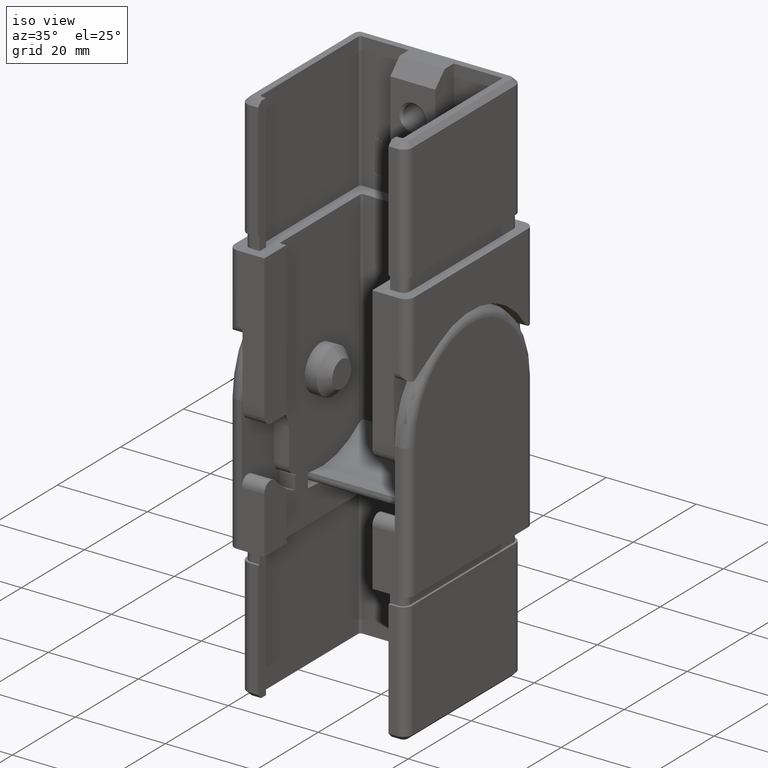
[diagram: clean part render]
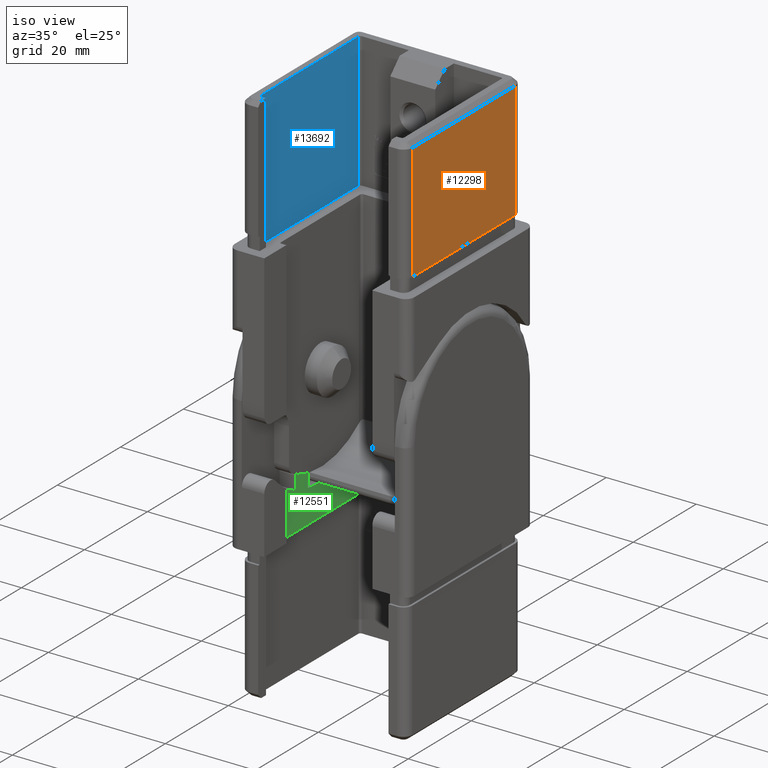
[diagram: same view with three faces highlighted in distinct colors, each labeled with its STEP entity id]
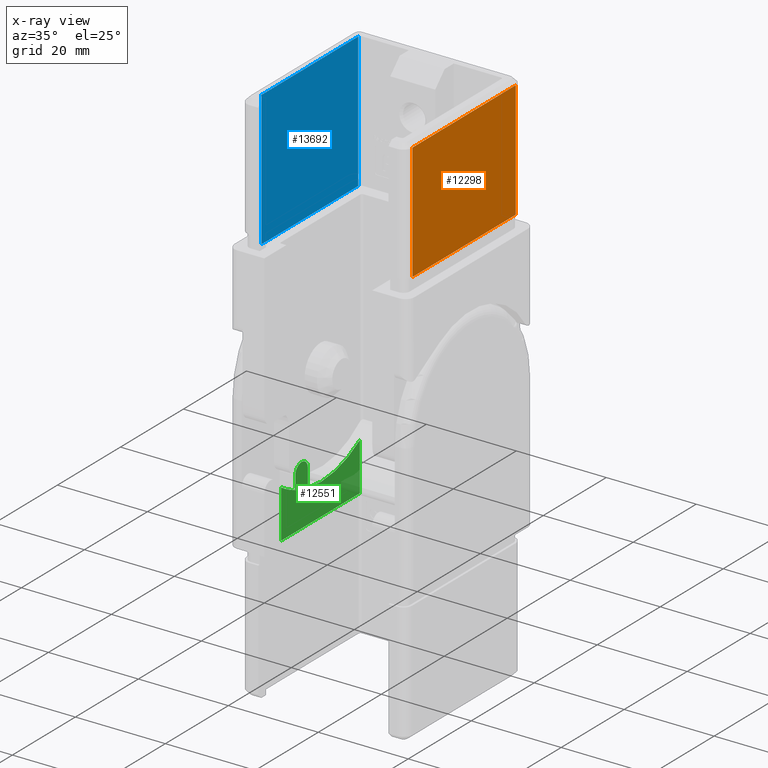
[diagram: x-ray of the same camera — body ghosted, the three highlighted faces saturated]
A machine part, iso view with three faces highlighted in distinct colors.
The next image is the same camera in x-ray (body ghosted, the three faces saturated) — at least one of them is partly hidden behind the body in this view.
Their STEP definitions:

[orange] entity #12298 — the highlighted planar face has unit normal (1, 0, 0).
#258 = VERTEX_POINT ( 'NONE', #21685 ) ;
#331 = DIRECTION ( 'NONE',  ( -0.0000000000000000000, -0.0000000000000000000, -1.000000000000000000 ) ) ;
#446 = VECTOR ( 'NONE', #14675, 1000.000000000000000 ) ;
#2272 = ORIENTED_EDGE ( 'NONE', *, *, #13536, .F. ) ;
#2844 = CARTESIAN_POINT ( 'NONE',  ( 18.39999999999998800, 16.39999999999997700, 3.000000000000002700 ) ) ;
#3814 = CARTESIAN_POINT ( 'NONE',  ( 18.39999999999998800, -16.40000000000002000, 3.000000000000002700 ) ) ;
#4831 = VECTOR ( 'NONE', #331, 1000.000000000000000 ) ;
#5571 = VERTEX_POINT ( 'NONE', #23393 ) ;
#6467 = VERTEX_POINT ( 'NONE', #23175 ) ;
#6833 = LINE ( 'NONE', #2844, #16278 ) ;
#6858 = ORIENTED_EDGE ( 'NONE', *, *, #16550, .T. ) ;
#7132 = VERTEX_POINT ( 'NONE', #3814 ) ;
#8384 = EDGE_CURVE ( 'NONE', #5571, #6467, #21332, .T. ) ;
#8396 = PLANE ( 'NONE',  #10273 ) ;
#9656 = LINE ( 'NONE', #20561, #446 ) ;
#10273 = AXIS2_PLACEMENT_3D ( 'NONE', #20420, #14293, #12405 ) ;
#11227 = CARTESIAN_POINT ( 'NONE',  ( 18.40000000000000600, 0.0000000000000000000, 29.00000000000000400 ) ) ;
#11598 = EDGE_CURVE ( 'NONE', #258, #7132, #9656, .T. ) ;
#12298 = ADVANCED_FACE ( 'NONE', ( #24291 ), #8396, .T. ) ;
#12405 = DIRECTION ( 'NONE',  ( -0.0000000000000000000, 0.0000000000000000000, -1.000000000000000000 ) ) ;
#12565 = ORIENTED_EDGE ( 'NONE', *, *, #11598, .T. ) ;
#12939 = DIRECTION ( 'NONE',  ( 0.0000000000000000000, -1.000000000000000000, 0.0000000000000000000 ) ) ;
#13536 = EDGE_CURVE ( 'NONE', #6467, #7132, #6833, .T. ) ;
#14293 = DIRECTION ( 'NONE',  ( 1.000000000000000000, 0.0000000000000000000, -0.0000000000000000000 ) ) ;
#14675 = DIRECTION ( 'NONE',  ( -0.0000000000000000000, -0.0000000000000000000, -1.000000000000000000 ) ) ;
#16278 = VECTOR ( 'NONE', #12939, 1000.000000000000000 ) ;
#16550 = EDGE_CURVE ( 'NONE', #5571, #258, #22493, .T. ) ;
#18893 = ORIENTED_EDGE ( 'NONE', *, *, #8384, .F. ) ;
#20026 = CARTESIAN_POINT ( 'NONE',  ( 18.40000000000000600, 16.39999999999999900, 30.00000000000000000 ) ) ;
#20420 = CARTESIAN_POINT ( 'NONE',  ( 18.40000000000000600, 0.0000000000000000000, 30.00000000000000000 ) ) ;
#20561 = CARTESIAN_POINT ( 'NONE',  ( 18.40000000000000600, -16.39999999999999900, 30.00000000000000000 ) ) ;
#21332 = LINE ( 'NONE', #20026, #4831 ) ;
#21508 = EDGE_LOOP ( 'NONE', ( #2272, #18893, #6858, #12565 ) ) ;
#21685 = CARTESIAN_POINT ( 'NONE',  ( 18.40000000000000600, -16.39999999999999900, 29.00000000000000400 ) ) ;
#22493 = LINE ( 'NONE', #11227, #22808 ) ;
#22808 = VECTOR ( 'NONE', #24879, 1000.000000000000000 ) ;
#23175 = CARTESIAN_POINT ( 'NONE',  ( 18.39999999999998800, 16.39999999999997700, 3.000000000000002700 ) ) ;
#23393 = CARTESIAN_POINT ( 'NONE',  ( 18.40000000000000600, 16.39999999999999900, 29.00000000000000400 ) ) ;
#24291 = FACE_OUTER_BOUND ( 'NONE', #21508, .T. ) ;
#24879 = DIRECTION ( 'NONE',  ( 0.0000000000000000000, -1.000000000000000000, 0.0000000000000000000 ) ) ;

[blue] entity #13692 — the highlighted planar face has unit normal (-1, 0, 0).
#71 = ORIENTED_EDGE ( 'NONE', *, *, #15171, .T. ) ;
#564 = CARTESIAN_POINT ( 'NONE',  ( -15.90000000000000700, 15.39999999999999300, 30.00000000000000000 ) ) ;
#1573 = DIRECTION ( 'NONE',  ( 0.0000000000000000000, 1.000000000000000000, -0.0000000000000000000 ) ) ;
#3134 = CARTESIAN_POINT ( 'NONE',  ( -15.90000000000000700, -15.39999999999999300, 0.0000000000000000000 ) ) ;
#4199 = LINE ( 'NONE', #564, #5729 ) ;
#4682 = VERTEX_POINT ( 'NONE', #15264 ) ;
#4994 = FACE_OUTER_BOUND ( 'NONE', #20919, .T. ) ;
#5395 = DIRECTION ( 'NONE',  ( -1.000000000000000000, 0.0000000000000000000, 0.0000000000000000000 ) ) ;
#5610 = CARTESIAN_POINT ( 'NONE',  ( -15.90000000000000700, 0.0000000000000000000, 0.0000000000000000000 ) ) ;
#5729 = VECTOR ( 'NONE', #21786, 1000.000000000000000 ) ;
#6264 = EDGE_CURVE ( 'NONE', #4682, #21860, #17522, .T. ) ;
#6694 = CARTESIAN_POINT ( 'NONE',  ( -15.90000000000000700, -15.39999999999999300, 30.00000000000000000 ) ) ;
#6783 = DIRECTION ( 'NONE',  ( -0.0000000000000000000, -0.0000000000000000000, -1.000000000000000000 ) ) ;
#7560 = VECTOR ( 'NONE', #1573, 1000.000000000000000 ) ;
#8087 = CARTESIAN_POINT ( 'NONE',  ( -15.90000000000000700, 15.39999999999999300, 0.0000000000000000000 ) ) ;
#9286 = ORIENTED_EDGE ( 'NONE', *, *, #6264, .F. ) ;
#10025 = EDGE_CURVE ( 'NONE', #18943, #24379, #17982, .T. ) ;
#10812 = VECTOR ( 'NONE', #15151, 1000.000000000000000 ) ;
#13692 = ADVANCED_FACE ( 'NONE', ( #4994 ), #22903, .F. ) ;
#13811 = LINE ( 'NONE', #6694, #16230 ) ;
#14212 = AXIS2_PLACEMENT_3D ( 'NONE', #15213, #5395, #19166 ) ;
#14543 = ORIENTED_EDGE ( 'NONE', *, *, #24866, .F. ) ;
#15151 = DIRECTION ( 'NONE',  ( 0.0000000000000000000, 1.000000000000000000, -0.0000000000000000000 ) ) ;
#15171 = EDGE_CURVE ( 'NONE', #4682, #18943, #13811, .T. ) ;
#15213 = CARTESIAN_POINT ( 'NONE',  ( -15.90000000000000700, 0.0000000000000000000, 30.00000000000000000 ) ) ;
#15264 = CARTESIAN_POINT ( 'NONE',  ( -15.90000000000000700, -15.39999999999999300, 30.00000000000000000 ) ) ;
#15533 = CARTESIAN_POINT ( 'NONE',  ( -15.90000000000000700, 15.39999999999999300, 30.00000000000000000 ) ) ;
#16230 = VECTOR ( 'NONE', #6783, 1000.000000000000000 ) ;
#17522 = LINE ( 'NONE', #21035, #10812 ) ;
#17982 = LINE ( 'NONE', #5610, #7560 ) ;
#18943 = VERTEX_POINT ( 'NONE', #3134 ) ;
#19166 = DIRECTION ( 'NONE',  ( 0.0000000000000000000, 0.0000000000000000000, 1.000000000000000000 ) ) ;
#20465 = ORIENTED_EDGE ( 'NONE', *, *, #10025, .T. ) ;
#20919 = EDGE_LOOP ( 'NONE', ( #20465, #14543, #9286, #71 ) ) ;
#21035 = CARTESIAN_POINT ( 'NONE',  ( -15.90000000000000700, 0.0000000000000000000, 30.00000000000000000 ) ) ;
#21786 = DIRECTION ( 'NONE',  ( -0.0000000000000000000, -0.0000000000000000000, -1.000000000000000000 ) ) ;
#21860 = VERTEX_POINT ( 'NONE', #15533 ) ;
#22903 = PLANE ( 'NONE',  #14212 ) ;
#24379 = VERTEX_POINT ( 'NONE', #8087 ) ;
#24866 = EDGE_CURVE ( 'NONE', #21860, #24379, #4199, .T. ) ;

[green] entity #12551 — the highlighted planar face has unit normal (1, -0, -0).
#143 = DIRECTION ( 'NONE',  ( 1.000000000000000000, 3.469446951953615700E-016, -0.0000000000000000000 ) ) ;
#393 = LINE ( 'NONE', #8830, #15402 ) ;
#842 = DIRECTION ( 'NONE',  ( -4.003208021484941500E-016, 1.000000000000000000, 0.0000000000000000000 ) ) ;
#1008 = EDGE_CURVE ( 'NONE', #3118, #1309, #11859, .T. ) ;
#1309 = VERTEX_POINT ( 'NONE', #21907 ) ;
#1321 = CARTESIAN_POINT ( 'NONE',  ( 13.49999999999999300, -12.49999999999998400, 0.0000000000000000000 ) ) ;
#1349 = FACE_OUTER_BOUND ( 'NONE', #19286, .T. ) ;
#2064 = EDGE_CURVE ( 'NONE', #1309, #10681, #6627, .T. ) ;
#2388 = AXIS2_PLACEMENT_3D ( 'NONE', #5544, #3577, #15449 ) ;
#2453 = LINE ( 'NONE', #14672, #17455 ) ;
#2465 = CARTESIAN_POINT ( 'NONE',  ( 13.49999999999998900, -3.999999999999995600, -7.350496694187754100 ) ) ;
#3118 = VERTEX_POINT ( 'NONE', #10079 ) ;
#3577 = DIRECTION ( 'NONE',  ( -1.000000000000000000, -3.469446951953615700E-016, 0.0000000000000000000 ) ) ;
#3787 = VERTEX_POINT ( 'NONE', #4493 ) ;
#3837 = CARTESIAN_POINT ( 'NONE',  ( 13.49999999999998000, 12.49999999999999500, -10.69326542369217800 ) ) ;
#4078 = CARTESIAN_POINT ( 'NONE',  ( 13.49999999999998400, 12.49999999999999500, -5.999999999999998200 ) ) ;
#4439 = DIRECTION ( 'NONE',  ( 0.0000000000000000000, -4.337347273737294400E-016, -1.000000000000000000 ) ) ;
#4493 = CARTESIAN_POINT ( 'NONE',  ( 13.49999999999998200, 12.49999999999999500, 0.0000000000000000000 ) ) ;
#5190 = CARTESIAN_POINT ( 'NONE',  ( 13.49999999999998900, -5.999999999999997300, -11.35000000000000700 ) ) ;
#5301 = EDGE_CURVE ( 'NONE', #18249, #3787, #393, .T. ) ;
#5544 = CARTESIAN_POINT ( 'NONE',  ( 13.49999999999998800, 1.734723475976807600E-016, -30.00000000000000000 ) ) ;
#5661 = ORIENTED_EDGE ( 'NONE', *, *, #21838, .T. ) ;
#6129 = CARTESIAN_POINT ( 'NONE',  ( 13.49999999999998400, 0.0000000000000000000, -30.00000000000000400 ) ) ;
#6533 = VERTEX_POINT ( 'NONE', #10202 ) ;
#6593 = AXIS2_PLACEMENT_3D ( 'NONE', #5190, #20569, #6740 ) ;
#6627 = LINE ( 'NONE', #8842, #14861 ) ;
#6740 = DIRECTION ( 'NONE',  ( 0.0000000000000000000, -1.000000000000000000, 0.0000000000000000000 ) ) ;
#7263 = ORIENTED_EDGE ( 'NONE', *, *, #5301, .T. ) ;
#7305 = VECTOR ( 'NONE', #4439, 1000.000000000000000 ) ;
#7534 = EDGE_CURVE ( 'NONE', #6533, #3118, #13140, .T. ) ;
#8830 = CARTESIAN_POINT ( 'NONE',  ( 13.49999999999999300, -12.99999999999998900, 0.0000000000000000000 ) ) ;
#8842 = CARTESIAN_POINT ( 'NONE',  ( 13.49999999999999100, -7.999999999999998200, -11.35000000000000700 ) ) ;
#8853 = VERTEX_POINT ( 'NONE', #3837 ) ;
#8937 = LINE ( 'NONE', #20527, #20218 ) ;
#9987 = DIRECTION ( 'NONE',  ( 3.771137991253928600E-016, -1.000000000000000000, 1.810146235801885700E-015 ) ) ;
#10079 = CARTESIAN_POINT ( 'NONE',  ( 13.49999999999998900, -3.999999999999997300, -11.35000000000000700 ) ) ;
#10202 = CARTESIAN_POINT ( 'NONE',  ( 13.49999999999998900, -3.999999999999995600, -7.350496694187754100 ) ) ;
#10681 = VERTEX_POINT ( 'NONE', #17461 ) ;
#11751 = ORIENTED_EDGE ( 'NONE', *, *, #7534, .T. ) ;
#11859 = CIRCLE ( 'NONE', #6593, 2.000000000000000900 ) ;
#12460 = DIRECTION ( 'NONE',  ( 0.0000000000000000000, 0.0000000000000000000, -1.000000000000000000 ) ) ;
#12551 = ADVANCED_FACE ( 'NONE', ( #1349 ), #15191, .T. ) ;
#12699 = DIRECTION ( 'NONE',  ( 0.0000000000000000000, 0.0000000000000000000, 1.000000000000000000 ) ) ;
#13140 = LINE ( 'NONE', #2465, #7305 ) ;
#13250 = CARTESIAN_POINT ( 'NONE',  ( 13.49999999999999100, -12.49999999999998400, -10.69326542369217100 ) ) ;
#13400 = AXIS2_PLACEMENT_3D ( 'NONE', #6129, #19979, #9987 ) ;
#13677 = DIRECTION ( 'NONE',  ( 3.771137991253928600E-016, -1.000000000000000000, 0.0000000000000000000 ) ) ;
#14463 = VECTOR ( 'NONE', #21393, 1000.000000000000000 ) ;
#14672 = CARTESIAN_POINT ( 'NONE',  ( 13.49999999999998400, 12.49999999999999500, -39.84869010954215400 ) ) ;
#14706 = CIRCLE ( 'NONE', #20164, 23.00000000000000000 ) ;
#14861 = VECTOR ( 'NONE', #22665, 1000.000000000000000 ) ;
#15191 = PLANE ( 'NONE',  #2388 ) ;
#15243 = EDGE_CURVE ( 'NONE', #21690, #18249, #8937, .T. ) ;
#15402 = VECTOR ( 'NONE', #842, 1000.000000000000000 ) ;
#15449 = DIRECTION ( 'NONE',  ( 3.469446951953615700E-016, -1.000000000000000000, -0.0000000000000000000 ) ) ;
#16272 = LINE ( 'NONE', #17228, #14463 ) ;
#17228 = CARTESIAN_POINT ( 'NONE',  ( 13.49999999999998400, 12.49999999999999500, -11.02633403898970200 ) ) ;
#17455 = VECTOR ( 'NONE', #12460, 1000.000000000000000 ) ;
#17461 = CARTESIAN_POINT ( 'NONE',  ( 13.49999999999998800, -7.999999999999994700, -8.436141347152176500 ) ) ;
#17507 = ORIENTED_EDGE ( 'NONE', *, *, #15243, .T. ) ;
#18249 = VERTEX_POINT ( 'NONE', #1321 ) ;
#19124 = EDGE_CURVE ( 'NONE', #20075, #8853, #16272, .T. ) ;
#19224 = ORIENTED_EDGE ( 'NONE', *, *, #19124, .T. ) ;
#19286 = EDGE_LOOP ( 'NONE', ( #21641, #19224, #5661, #11751, #22636, #20128, #24887, #17507, #7263 ) ) ;
#19979 = DIRECTION ( 'NONE',  ( 1.000000000000000000, 3.469446951953615700E-016, -0.0000000000000000000 ) ) ;
#20075 = VERTEX_POINT ( 'NONE', #4078 ) ;
#20128 = ORIENTED_EDGE ( 'NONE', *, *, #2064, .T. ) ;
#20164 = AXIS2_PLACEMENT_3D ( 'NONE', #21515, #143, #13677 ) ;
#20218 = VECTOR ( 'NONE', #12699, 1000.000000000000000 ) ;
#20527 = CARTESIAN_POINT ( 'NONE',  ( 13.49999999999999100, -12.49999999999998400, 0.0000000000000000000 ) ) ;
#20569 = DIRECTION ( 'NONE',  ( -1.000000000000000000, -3.469446951953615700E-016, 0.0000000000000000000 ) ) ;
#21393 = DIRECTION ( 'NONE',  ( -0.0000000000000000000, -0.0000000000000000000, -1.000000000000000000 ) ) ;
#21515 = CARTESIAN_POINT ( 'NONE',  ( 13.49999999999998400, 0.0000000000000000000, -30.00000000000000400 ) ) ;
#21641 = ORIENTED_EDGE ( 'NONE', *, *, #22016, .T. ) ;
#21690 = VERTEX_POINT ( 'NONE', #13250 ) ;
#21838 = EDGE_CURVE ( 'NONE', #8853, #6533, #14706, .T. ) ;
#21907 = CARTESIAN_POINT ( 'NONE',  ( 13.49999999999998900, -7.999999999999998200, -11.35000000000000700 ) ) ;
#22016 = EDGE_CURVE ( 'NONE', #3787, #20075, #2453, .T. ) ;
#22636 = ORIENTED_EDGE ( 'NONE', *, *, #1008, .T. ) ;
#22665 = DIRECTION ( 'NONE',  ( 0.0000000000000000000, 1.190670984868393100E-015, 1.000000000000000000 ) ) ;
#23437 = EDGE_CURVE ( 'NONE', #10681, #21690, #24426, .T. ) ;
#24426 = CIRCLE ( 'NONE', #13400, 23.00000000000000000 ) ;
#24887 = ORIENTED_EDGE ( 'NONE', *, *, #23437, .T. ) ;